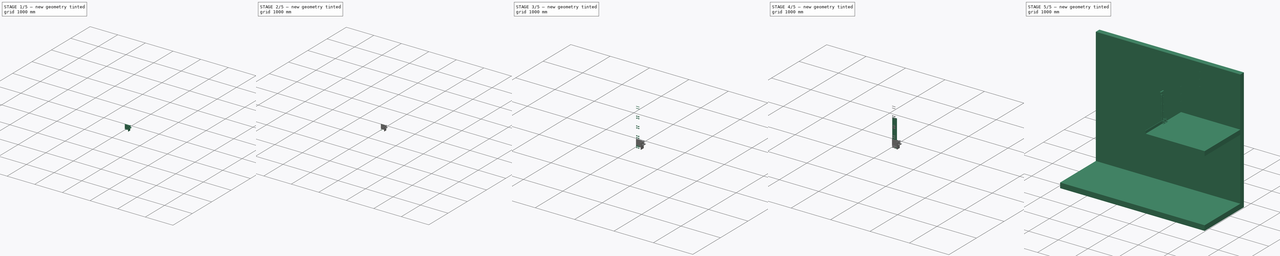
[diagram: build sequence overview — one tinted view per stage of 5, left to right]
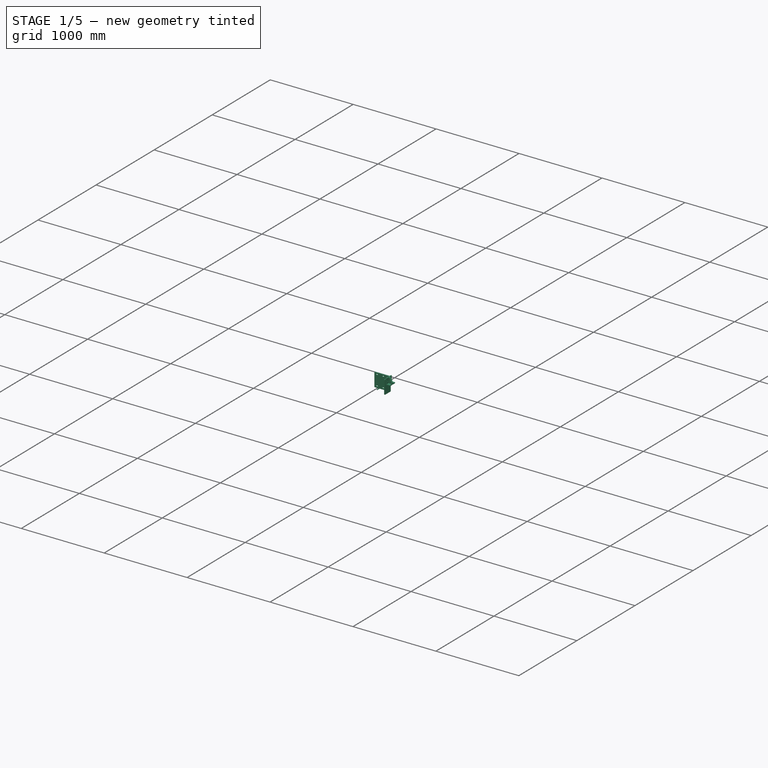
[diagram: stage 1 of 5 — iso view after this stage's code; geometry added in this stage tinted green]
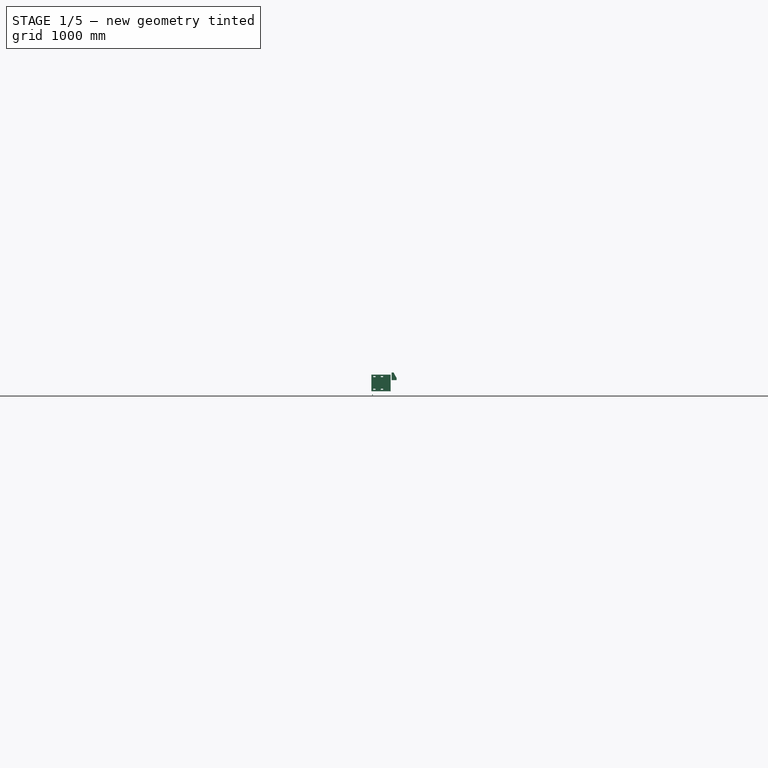
[diagram: stage 1 of 5 — front view after this stage's code; geometry added in this stage tinted green]
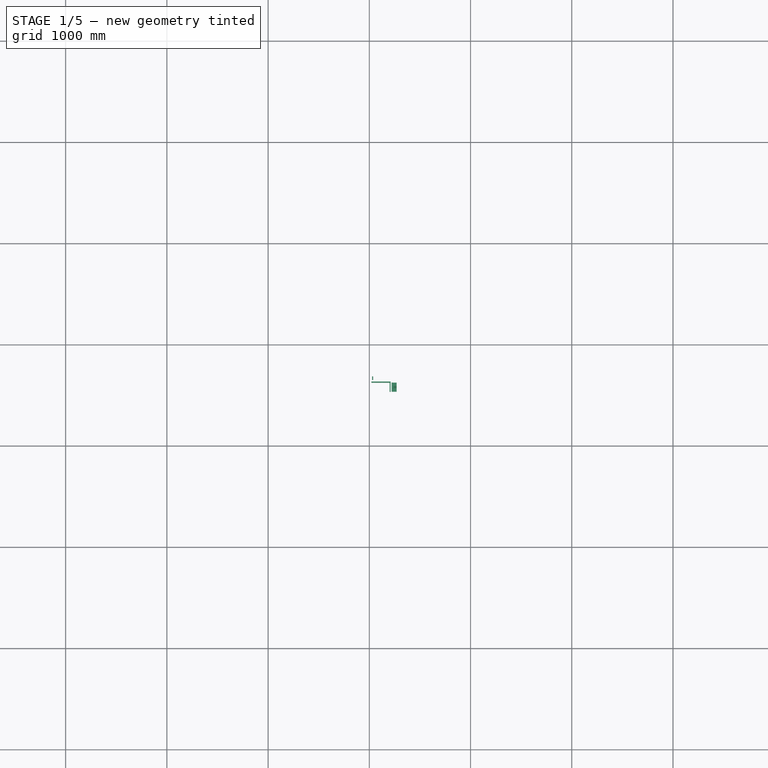
[diagram: stage 1 of 5 — top view after this stage's code; geometry added in this stage tinted green]
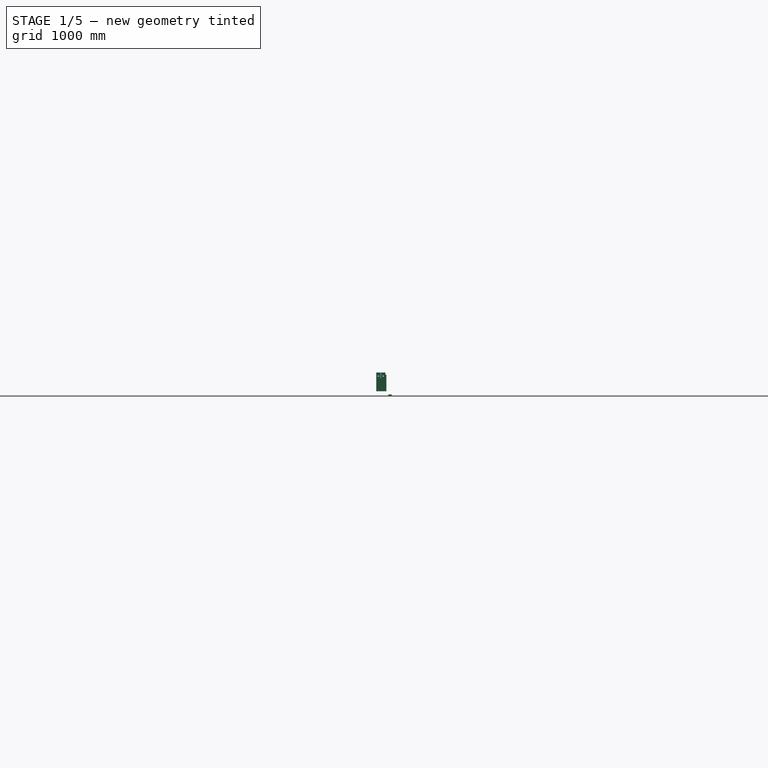
[diagram: stage 1 of 5 — right view after this stage's code; geometry added in this stage tinted green]
FCSTD DOCUMENT  (FreeCAD 0.17R11051 (Git))
Label: railing_last_steel
License: All rights reserved
LicenseURL: http://en.wikipedia.org/wiki/All_rights_reserved
objects: Part::Extrusion×14, Part::FeaturePython×14, Part::Part2DObjectPython×13, Sketcher::SketchObject×9, TechDraw::DrawProjGroupItem×9, PartDesign::Pad×6, Part::Compound×6, Part::Cut×6, PartDesign::Body×3, Part::Feature×3, PartDesign::Pocket×3, TechDraw::DrawProjGroup×3, PartDesign::ShapeBinder×2, Part::Chamfer×2, App::DocumentObjectGroup×2, TechDraw::DrawSVGTemplate×1, TechDraw::DrawViewPart×1, PartDesign::Plane×1, PartDesign::Fillet×1, TechDraw::DrawViewMulti×1, +1 more types
note: 92 computed .brp shape members not serialized (recipe doc carries the construction recipe); baked Part::Feature solids carry a one-line shape summary decoded from their .brp

FEATURE [Sketcher::SketchObject] Sketch008
  MapMode = 5
  Support = -> [XY_Plane]
  sketch-geometry (6):
    g0: LineSegment StartX=0 StartY=0 StartZ=0 EndX=0 EndY=-100 EndZ=0
    g1: LineSegment StartX=0 StartY=-100 StartZ=0 EndX=-10 EndY=-100 EndZ=0
    g2: LineSegment StartX=-10 StartY=-100 StartZ=0 EndX=-10 EndY=-10 EndZ=0
    g3: LineSegment StartX=-10 StartY=-10 StartZ=0 EndX=-190 EndY=-10 EndZ=0
    g4: LineSegment StartX=-190 StartY=-10 StartZ=0 EndX=-190 EndY=0 EndZ=0
    g5: LineSegment StartX=-190 StartY=0 StartZ=0 EndX=0 EndY=0 EndZ=0
  constraints (17):
    c: Coincident(g-1,g0)
    c: PointOnObject(g0,g-2)
    c: Coincident(g0,g1)
    c: Horizontal(g1)
    c: Coincident(g1,g2)
    c: Vertical(g2)
    c: Coincident(g2,g3)
    c: Horizontal(g3)
    c: Coincident(g3,g4)
    c: Vertical(g4)
    c: Coincident(g4,g5)
    c: Coincident(g5,g0)
    c: Horizontal(g5)
    c: DistanceY(g0,g0) = 100
    c: DistanceX(g5,g5) = 190
    c: DistanceX(g1,g1) = 10
    c: Equal(g4,g1)
FEATURE [PartDesign::Pad] Pad004
  Length = 165
  Length2 = 100
  Midplane = true
  Profile = -> Sketch008
  Type = 0
FEATURE [Part::Part2DObjectPython] Circle008  # Draft 2D object (typed FeaturePython)
  FirstAngle = 0
  LastAngle = 0
  MakeFace = true
  Placement = pos=(32.2,-311,44) rot=(-1,0,0;1.5708rad)
  Radius = 5
FEATURE [Part::Extrusion] Extrude014
  Base = -> Circle008
  Dir = (0,-1,0)
  DirMode = 0
  FaceMakerClass = Part::FaceMakerBullseye
  LengthFwd = 35
  LengthRev = 0
  Solid = false
  Symmetric = false
FEATURE [Sketcher::SketchObject] Sketch010
  ExternalGeometry = -> [Pad004]
  MapMode = 5
  Placement = pos=(0,0,0) rot=(0,0.707107,0.707107;3.14159rad)
  Support = -> [Pad004]
  sketch-geometry (19):
    g0: ArcOfCircle CenterX=77.5 CenterY=62.5 CenterZ=0 NormalX=0 NormalY=0 NormalZ=1 Radius=5 StartAngle=1.5708 EndAngle=4.71239
    g1: ArcOfCircle CenterX=92.5 CenterY=62.5 CenterZ=0 NormalX=0 NormalY=0 NormalZ=1 Radius=5 StartAngle=4.71239 EndAngle=7.85398
    g2: LineSegment StartX=77.5 StartY=57.5 StartZ=0 EndX=92.5 EndY=57.5 EndZ=0
    g3: LineSegment StartX=77.5 StartY=67.5 StartZ=0 EndX=92.5 EndY=67.5 EndZ=0
    g4: ArcOfCircle CenterX=152.5 CenterY=62.5 CenterZ=0 NormalX=0 NormalY=0 NormalZ=1 Radius=5 StartAngle=1.5708 EndAngle=4.71239
    g5: ArcOfCircle CenterX=167.5 CenterY=62.5 CenterZ=0 NormalX=0 NormalY=0 NormalZ=1 Radius=5 StartAngle=4.71239 EndAngle=7.85398
    g6: LineSegment StartX=152.5 StartY=57.5 StartZ=0 EndX=167.5 EndY=57.5 EndZ=0
    g7: LineSegment StartX=152.5 StartY=67.5 StartZ=0 EndX=167.5 EndY=67.5 EndZ=0
    g8: ArcOfCircle CenterX=152.5 CenterY=-62.5 CenterZ=0 NormalX=0 NormalY=0 NormalZ=1 Radius=5 StartAngle=1.5708 EndAngle=4.71239
    g9: ArcOfCircle CenterX=167.5 CenterY=-62.5 CenterZ=0 NormalX=0 NormalY=0 NormalZ=1 Radius=5 StartAngle=4.71239 EndAngle=7.85398
    g10: LineSegment StartX=152.5 StartY=-67.5 StartZ=0 EndX=167.5 EndY=-67.5 EndZ=0
    g11: LineSegment StartX=152.5 StartY=-57.5 StartZ=0 EndX=167.5 EndY=-57.5 EndZ=0
    g12: ArcOfCircle CenterX=77.5 CenterY=-62.5 CenterZ=0 NormalX=0 NormalY=0 NormalZ=1 Radius=5 StartAngle=1.5708 EndAngle=4.71239
    g13: ArcOfCircle CenterX=92.5 CenterY=-62.5 CenterZ=0 NormalX=0 NormalY=0 NormalZ=1 Radius=5 StartAngle=4.71239 EndAngle=7.85398
    g14: LineSegment StartX=77.5 StartY=-67.5 StartZ=0 EndX=92.5 EndY=-67.5 EndZ=0
    g15: LineSegment StartX=77.5 StartY=-57.5 StartZ=0 EndX=92.5 EndY=-57.5 EndZ=0
    g16: LineSegment [constr] StartX=160 StartY=82.5 StartZ=0 EndX=160 EndY=-82.5 EndZ=0
    g17: LineSegment [constr] StartX=85 StartY=82.5 StartZ=0 EndX=85 EndY=-82.5 EndZ=0
    g18: LineSegment [constr] StartX=190 StartY=62.5 StartZ=0 EndX=0 EndY=62.5 EndZ=0
  constraints (50):
    c: Tangent(g0,g3) = 1.5708
    c: Tangent(g0,g2) = -1.5708
    c: Tangent(g2,g1) = -1.5708
    c: Tangent(g3,g1) = 1.5708
    c: Horizontal(g2)
    c: Equal(g0,g1)
    c: Tangent(g4,g7) = 1.5708
    c: Tangent(g4,g6) = -1.5708
    c: Tangent(g6,g5) = -1.5708
    c: Tangent(g7,g5) = 1.5708
    c: Horizontal(g6)
    c: Equal(g4,g5)
    c: Tangent(g8,g11) = 1.5708
    c: Tangent(g8,g10) = -1.5708
    c: Tangent(g10,g9) = -1.5708
    c: Tangent(g11,g9) = 1.5708
    c: Horizontal(g10)
    c: Equal(g8,g9)
    c: Tangent(g12,g15) = 1.5708
    c: Tangent(g12,g14) = -1.5708
    c: Tangent(g14,g13) = -1.5708
    c: Tangent(g15,g13) = 1.5708
    c: Horizontal(g14)
    c: Equal(g12,g13)
    c: Radius(g5) = 5
    c: DistanceX(g7,g7) = 15
    c: Equal(g7,g3)
    c: Equal(g3,g15)
    c: Equal(g15,g11)
    c: Equal(g4,g0)
    c: Equal(g0,g12)
    c: Equal(g12,g8)
    c: PointOnObject(g16,g-3)
    c: PointOnObject(g16,g-5)
    c: Vertical(g16)
    c: PointOnObject(g17,g-3)
    c: PointOnObject(g17,g-5)
    c: Vertical(g17)
    c: DistanceX(g17,g16) = 75
    c: DistanceX(g16,g-4) = 30
    c: Symmetric(g4,g5,g16)
    c: Symmetric(g0,g1,g17)
    c: PointOnObject(g18,g-4)
    c: PointOnObject(g18,g-6)
    c: Horizontal(g18)
    c: PointOnObject(g5,g18)
    c: PointOnObject(g1,g18)
    c: DistanceY(g18,g-4) = 20
    c: Symmetric(g0,g12,g-1)
    c: Symmetric(g8,g4,g-1)
FEATURE [PartDesign::Pocket] Pocket
  BaseFeature = -> Pad004
  Length = 5
  Profile = -> Sketch010
  Type = 1
FEATURE [Sketcher::SketchObject] Sketch011
  ExternalGeometry = -> [Pocket]
  MapMode = 5
  Placement = pos=(-10,0,0) rot=(0.57735,-0.57735,-0.57735;2.0944rad)
  Support = -> [Pocket]
  sketch-geometry (5):
    g0: LineSegment [constr] StartX=10 StartY=0 StartZ=0 EndX=55 EndY=0 EndZ=0
    g1: LineSegment [constr] StartX=55 StartY=0 StartZ=0 EndX=100 EndY=0 EndZ=0
    g2: LineSegment [constr] StartX=55 StartY=0 StartZ=0 EndX=55 EndY=82.5 EndZ=0
    g3: Circle CenterX=80 CenterY=67.5 CenterZ=0 NormalX=0 NormalY=0 NormalZ=1 Radius=5
    g4: Circle CenterX=30 CenterY=67.5 CenterZ=0 NormalX=0 NormalY=0 NormalZ=1 Radius=5
  constraints (15):
    c: PointOnObject(g0,g-4)
    c: PointOnObject(g0,g-1)
    c: Horizontal(g0)
    c: Coincident(g1,g0)
    c: PointOnObject(g1,g-5)
    c: Horizontal(g1)
    c: Equal(g1,g0)
    c: Coincident(g2,g0)
    c: Vertical(g2)
    c: PointOnObject(g2,g-3)
    c: DistanceX(g3,g-5) = 20
    c: DistanceY(g3,g-5) = 15
    c: Radius(g3) = 5
    c: Symmetric(g4,g3,g2)
    c: Equal(g4,g3)
FEATURE [PartDesign::Pocket] Pocket001
  BaseFeature = -> Pocket
  Length = 5
  Profile = -> Sketch011
  Type = 1
FEATURE [App::DocumentObjectGroup] Group002  label="ref"
  Group = -> [railing_eyelet_002,room_01,loft_railing_element_01]
FEATURE [Sketcher::SketchObject] Sketch012
  Placement = pos=(0,-526,0) rot=(-1,0,0;1.5708rad)
  sketch-geometry (8):
    g0: LineSegment [constr] StartX=2100 StartY=-2315 StartZ=0 EndX=2100 EndY=-2150 EndZ=0
    g1: LineSegment [constr] StartX=2100 StartY=-2295 StartZ=0 EndX=2120 EndY=-2295 EndZ=0
    g2: LineSegment StartX=2110 StartY=-2335 StartZ=0 EndX=2110 EndY=-2260 EndZ=0
    g3: LineSegment StartX=2110 StartY=-2260 StartZ=0 EndX=2160 EndY=-2260 EndZ=0
    g4: LineSegment StartX=2160 StartY=-2260 StartZ=0 EndX=2160 EndY=-2270 EndZ=0
    g5: LineSegment StartX=2160 StartY=-2270 StartZ=0 EndX=2120 EndY=-2270 EndZ=0
    g6: LineSegment StartX=2120 StartY=-2270 StartZ=0 EndX=2120 EndY=-2335 EndZ=0
    g7: LineSegment StartX=2120 StartY=-2335 StartZ=0 EndX=2110 EndY=-2335 EndZ=0
  constraints (27):
    c: Vertical(g0)
    c: Horizontal(g1)
    c: Coincident(g2,g3)
    c: Coincident(g3,g4)
    c: Coincident(g4,g5)
    c: Coincident(g5,g6)
    c: Coincident(g6,g7)
    c: Coincident(g7,g2)
    c: Horizontal(g7)
    c: Horizontal(g5)
    c: Horizontal(g3)
    c: Vertical(g2)
    c: Vertical(g6)
    c: Vertical(g4)
    c: Equal(g7,g4)
    c: DistanceX(g7,g7) = 10
    c: DistanceY(g0,g2) = 55
    c: DistanceX(g0) = 2100
    c: DistanceY(g0) = -2150
    c: DistanceY(g0,g0) = 165
    c: DistanceX(g0,g2) = 10
    c: DistanceX(g3,g3) = 50
    c: DistanceY(g6,g1) = 40
    c: PointOnObject(g1,g6)
    c: PointOnObject(g1,g0)
    c: DistanceY(g0,g1) = 20
    c: DistanceY(g2,g2) = 75
FEATURE [PartDesign::Pad] Pad005
  Length = 90
  Length2 = 100
  Midplane = true
  Placement = pos=(0,-526,0) rot=(-1,0,0;1.5708rad)
  Profile = -> Sketch012
  Type = 0
FEATURE [Sketcher::SketchObject] Sketch013
  ExternalGeometry = -> [Pad005]
  MapMode = 5
  Placement = pos=(2120,-526,0) rot=(0,1,0;1.5708rad)
  Support = -> [Pad005]
  sketch-geometry (9):
    g0: ArcOfCircle CenterX=-2310 CenterY=-25 CenterZ=0 NormalX=0 NormalY=0 NormalZ=1 Radius=5 StartAngle=1.5708 EndAngle=4.71239
    g1: ArcOfCircle CenterX=-2295 CenterY=-25 CenterZ=0 NormalX=0 NormalY=0 NormalZ=1 Radius=5 StartAngle=4.71239 EndAngle=7.85398
    g2: LineSegment StartX=-2310 StartY=-30 StartZ=0 EndX=-2295 EndY=-30 EndZ=0
    g3: LineSegment StartX=-2310 StartY=-20 StartZ=0 EndX=-2295 EndY=-20 EndZ=0
    g4: ArcOfCircle CenterX=-2310 CenterY=25 CenterZ=0 NormalX=0 NormalY=0 NormalZ=1 Radius=5 StartAngle=1.5708 EndAngle=4.71239
    g5: ArcOfCircle CenterX=-2295 CenterY=25 CenterZ=0 NormalX=0 NormalY=0 NormalZ=1 Radius=5 StartAngle=4.71239 EndAngle=7.85398
    g6: LineSegment StartX=-2310 StartY=20 StartZ=0 EndX=-2295 EndY=20 EndZ=0
    g7: LineSegment StartX=-2310 StartY=30 StartZ=0 EndX=-2295 EndY=30 EndZ=0
    g8: LineSegment [constr] StartX=-2295 StartY=-45 StartZ=0 EndX=-2295 EndY=45 EndZ=0
  constraints (26):
    c: Tangent(g0,g3) = 1.5708
    c: Tangent(g0,g2) = -1.5708
    c: Tangent(g2,g1) = -1.5708
    c: Tangent(g3,g1) = 1.5708
    c: Horizontal(g2)
    c: Equal(g0,g1)
    c: DistanceY(g0,g-6) = -20
    c: Radius(g0) = 5
    c: Tangent(g4,g7) = 1.5708
    c: Tangent(g4,g6) = -1.5708
    c: Tangent(g6,g5) = -1.5708
    c: Tangent(g7,g5) = 1.5708
    c: Horizontal(g6)
    c: Equal(g4,g5)
    c: Equal(g4,g0)
    c: Equal(g6,g3)
    c: Symmetric(g4,g0,g-1)
    c: PointOnObject(g8,g-6)
    c: PointOnObject(g8,g-3)
    c: Vertical(g8)
    c: DistanceX(g-6,g8) = 40
    c: PointOnObject(g1,g8)
    c: DistanceX(g2,g2) = 15
    c: DistanceX(g-6,g0) = 25
    c: DistanceX(g1,g-6) = 25
    c: DistanceY(g0,g4) = 50
FEATURE [PartDesign::Pocket] Pocket002
  BaseFeature = -> Pad005
  Length = 5
  Placement = pos=(0,-526,0) rot=(-1,0,0;1.5708rad)
  Profile = -> Sketch013
  Type = 1
FEATURE [PartDesign::ShapeBinder] CopyDWire001
FEATURE [PartDesign::Plane] DatumPlane
  MapMode = 5
  Placement = pos=(3.1e-11,-526,0) rot=(0,0.707107,0.707107;3.14159rad)
  Support = -> [CopyDWire001]
FEATURE [Sketcher::SketchObject] Sketch003
  ExternalGeometry = -> [Pocket002]
  MapMode = 5
  Placement = pos=(3.1e-11,-526,0) rot=(0,0.707107,0.707107;3.14159rad)
  Support = -> [DatumPlane]
  sketch-geometry (5):
    g0: LineSegment StartX=-2160 StartY=2270 StartZ=0 EndX=-2160 EndY=2280 EndZ=0
    g1: LineSegment StartX=-2160 StartY=2280 StartZ=0 EndX=-2130 EndY=2335 EndZ=0
    g2: LineSegment StartX=-2130 StartY=2335 StartZ=0 EndX=-2120 EndY=2335 EndZ=0
    g3: LineSegment StartX=-2120 StartY=2335 StartZ=0 EndX=-2120 EndY=2270 EndZ=0
    g4: LineSegment StartX=-2120 StartY=2270 StartZ=0 EndX=-2160 EndY=2270 EndZ=0
  constraints (12):
    c: Coincident(g-4,g0)
    c: Vertical(g0)
    c: Coincident(g0,g1)
    c: Coincident(g1,g2)
    c: Coincident(g2,g-3)
    c: Coincident(g2,g3)
    c: Coincident(g3,g-4)
    c: Coincident(g3,g4)
    c: Coincident(g4,g0)
    c: Horizontal(g2)
    c: Equal(g2,g0)
    c: DistanceX(g2,g2) = 10
FEATURE [PartDesign::Pad] Pad006
  BaseFeature = -> Pocket002
  Length = 20
  Length2 = 100
  Midplane = true
  Placement = pos=(0,-526,0) rot=(-1,0,0;1.5708rad)
  Profile = -> Sketch003
  Type = 0
FEATURE [PartDesign::Body] Body002
  Group = -> [Sketch012,Pad005,Sketch013,Pocket002,DatumPlane,CopyDWire001,Sketch003,Pad006]
  Origin = -> Body001Origin001
  Tip = -> Pad006
FEATURE [PartDesign::Fillet] Fillet
  Base = -> Pocket001 [Edge33,Edge29,Edge26,Edge30]
  BaseFeature = -> Pocket001
  Radius = 5
FEATURE [PartDesign::Body] Body
  Group = -> [Sketch008,Pad004,Sketch010,Pocket,Sketch011,Pocket001,Fillet]
  Origin = -> BodyOrigin
  Placement = pos=(210,-365,162.5) rot=(0,0,1;0rad)
FEATURE [App::DocumentObjectGroup] Group  label="utilities"
  Group = -> [Body001,Body,Body002]
FEATURE [Part::FeaturePython] Component004  label="Fillet001"  # WARN: FeaturePython — macro-defined, semantics opaque (R4)
  CloneOf = -> Fillet
  HorizontalArea = 0
  MoveWithHost = false
  PerimeterLength = 0
  Placement = pos=(210,-365,162.5) rot=(0,0,1;0rad)
  Role = 0
  VerticalArea = 0
FEATURE [TechDraw::DrawProjGroupItem] ProjItem004  label="Front001"
  ArcCenterMarks = true
  CenterScale = 2
  Direction = (0,-1,0)
  HardHidden = false
  HiddenWidth = 0.15
  HorizCenterLine = false
  IsoCount = 0
  IsoHidden = false
  IsoVisible = false
  IsoWidth = 0.3
  KeepLabel = false
  LineWidth = 0.7
  Rotation = 0
  RotationVector = (1,0,0)
  Scale = 0.5
  ScaleType = 2
  SeamHidden = false
  SeamVisible = false
  ShowSectionLine = true
  SmoothHidden = false
  SmoothVisible = false
  Type = 0
  VertCenterLine = false
  X = -1e-12
  Y = 56.25
FEATURE [TechDraw::DrawProjGroupItem] ProjItem005  label="Top001"
  ArcCenterMarks = true
  CenterScale = 2
  Direction = (0,0,1)
  HardHidden = true
  HiddenWidth = 0.15
  HorizCenterLine = false
  IsoCount = 0
  IsoHidden = false
  IsoVisible = false
  IsoWidth = 0.3
  KeepLabel = false
  LineWidth = 0.7
  Rotation = 0
  RotationVector = (1,0,0)
  Scale = 0.5
  ScaleType = 2
  SeamHidden = false
  SeamVisible = false
  ShowSectionLine = true
  SmoothHidden = false
  SmoothVisible = false
  Type = 4
  VertCenterLine = false
  X = 21.7068
  Y = -60
FEATURE [TechDraw::DrawProjGroup] ProjGroup001
  Anchor = -> ProjItem004
  AutoDistribute = true
  KeepLabel = false
  ProjectionType = 0
  Rotation = 0
  Scale = 0.5
  ScaleType = 2
  Views = -> [ProjItem004,ProjItem005]
  X = 132.485
  Y = 471.911
  spacingX = 25
  spacingY = 15
FEATURE [TechDraw::DrawProjGroupItem] ProjItem006  label="Front002"
  ArcCenterMarks = true
  CenterScale = 2
  Direction = (0,-1,0)
  HardHidden = true
  HiddenWidth = 0.15
  HorizCenterLine = false
  IsoCount = 0
  IsoHidden = false
  IsoVisible = false
  IsoWidth = 0.3
  KeepLabel = false
  LineWidth = 0.7
  Rotation = 0
  RotationVector = (1,0,0)
  Scale = 0.2
  ScaleType = 2
  SeamHidden = false
  SeamVisible = false
  ShowSectionLine = true
  SmoothHidden = false
  SmoothVisible = false
  Source = -> Component004
  Type = 0
  VertCenterLine = false
  X = -80
  Y = 0
FEATURE [TechDraw::DrawProjGroupItem] ProjItem007  label="Top002"
  ArcCenterMarks = true
  CenterScale = 2
  Direction = (0,0,1)
  HardHidden = true
  HiddenWidth = 0.15
  HorizCenterLine = false
  IsoCount = 0
  IsoHidden = false
  IsoVisible = false
  IsoWidth = 0.3
  KeepLabel = false
  LineWidth = 0.7
  Rotation = 0
  RotationVector = (1,0,0)
  Scale = 0.2
  ScaleType = 2
  SeamHidden = false
  SeamVisible = false
  ShowSectionLine = true
  SmoothHidden = false
  SmoothVisible = false
  Source = -> Component004
  Type = 4
  VertCenterLine = false
  X = 0
  Y = -48
FEATURE [TechDraw::DrawProjGroupItem] ProjItem008  label="Left001"
  ArcCenterMarks = true
  CenterScale = 2
  Direction = (-1,0,0)
  HardHidden = true
  HiddenWidth = 0.15
  HorizCenterLine = false
  IsoCount = 0
  IsoHidden = false
  IsoVisible = false
  IsoWidth = 0.3
  KeepLabel = false
  LineWidth = 0.7
  Rotation = 0
  RotationVector = (0,1,0)
  Scale = 0.2
  ScaleType = 2
  SeamHidden = false
  SeamVisible = false
  ShowSectionLine = true
  SmoothHidden = false
  SmoothVisible = false
  Source = -> Component004
  Type = 1
  VertCenterLine = false
  X = 53
  Y = 0
FEATURE [TechDraw::DrawProjGroup] ProjGroup002
  Anchor = -> ProjItem006
  AutoDistribute = true
  KeepLabel = false
  ProjectionType = 0
  Rotation = 0
  Scale = 0.2
  ScaleType = 2
  Source = -> Component004
  Views = -> [ProjItem006,ProjItem007,ProjItem008]
  X = 131.114
  Y = 327.275
  spacingX = 15
  spacingY = 15
FEATURE [Part::FeaturePython] Component005  label="Pad007"  # WARN: FeaturePython — macro-defined, semantics opaque (R4)
  CloneOf = -> Pad006
  HorizontalArea = 0
  MoveWithHost = false
  PerimeterLength = 0
  Placement = pos=(-1890,-420,-2070) rot=(-1,0,0;1.5708rad)
  Role = 0
  VerticalArea = 0
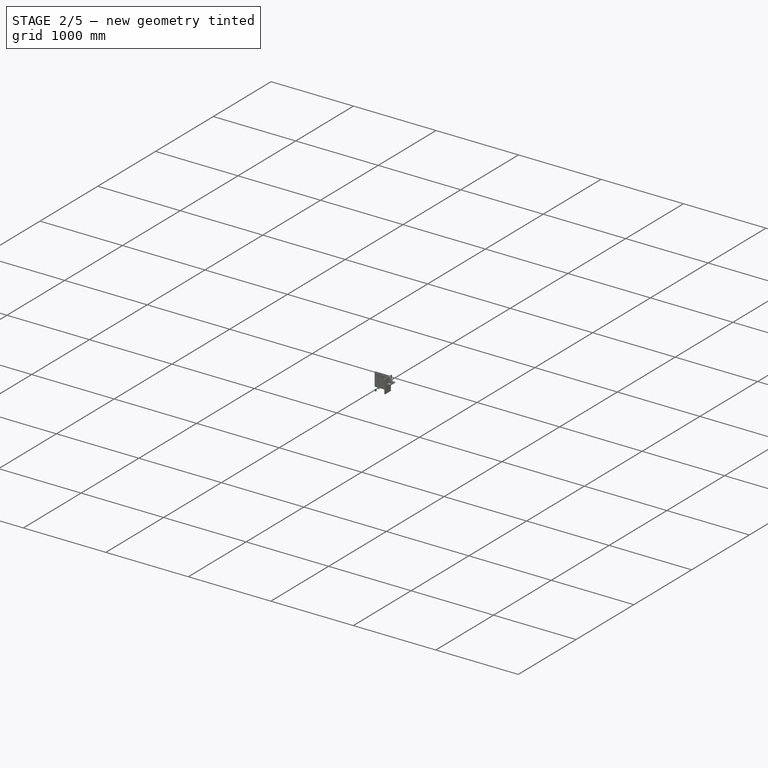
[diagram: stage 2 of 5 — iso view after this stage's code; geometry added in this stage tinted green]
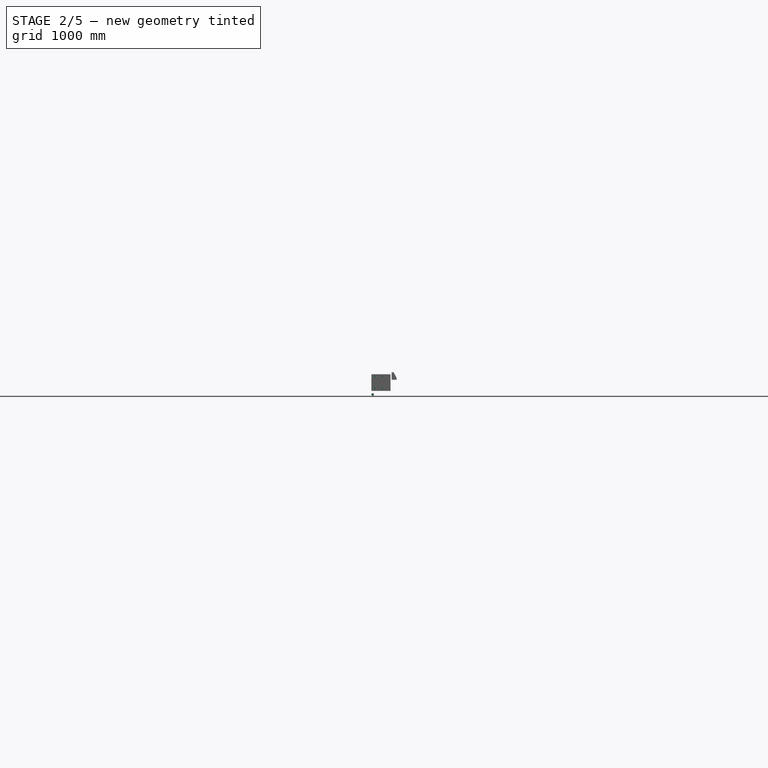
[diagram: stage 2 of 5 — front view after this stage's code; geometry added in this stage tinted green]
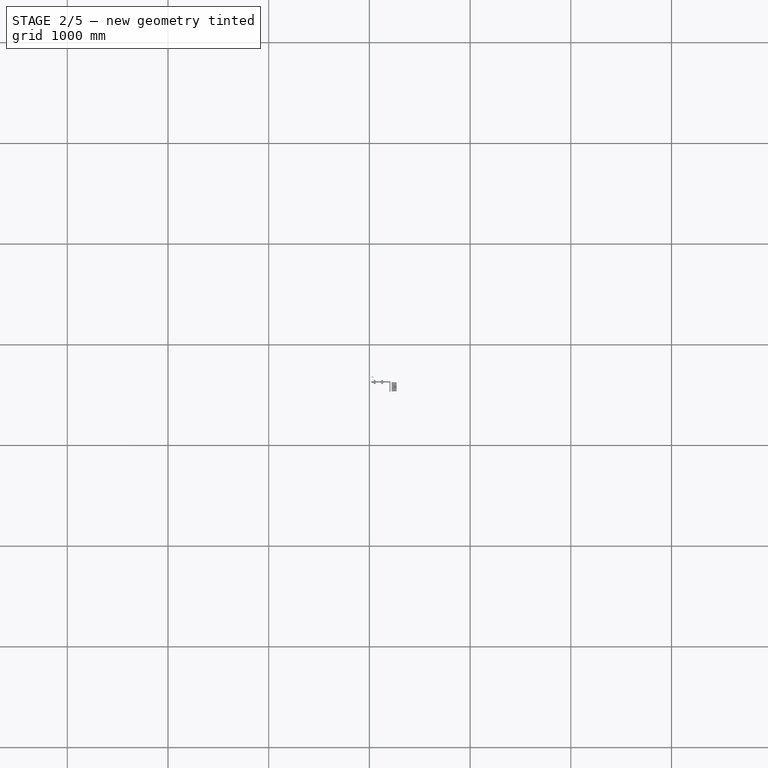
[diagram: stage 2 of 5 — top view after this stage's code; geometry added in this stage tinted green]
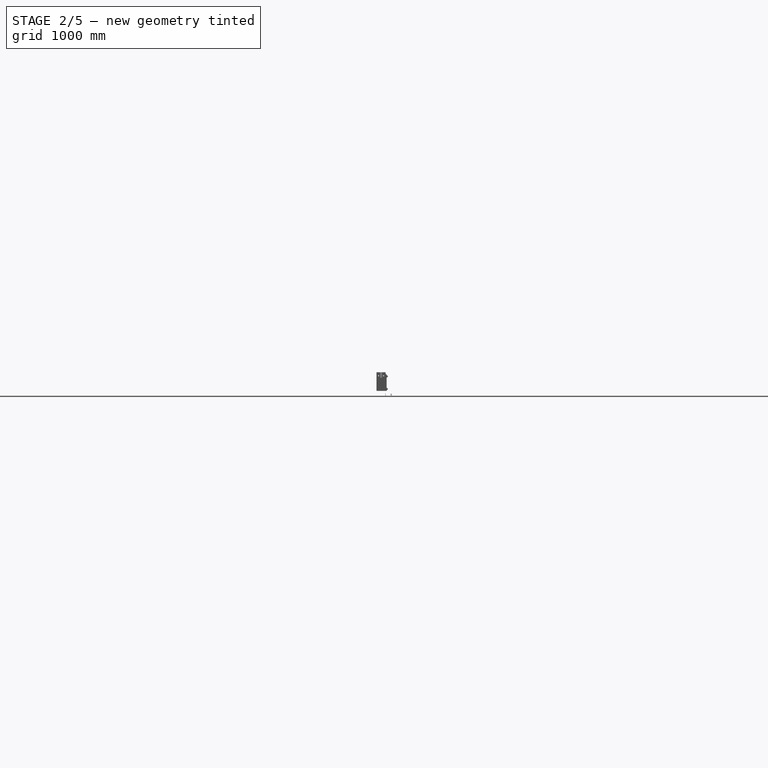
[diagram: stage 2 of 5 — right view after this stage's code; geometry added in this stage tinted green]
FEATURE [Part::Part2DObjectPython] Circle004  # Draft 2D object (typed FeaturePython)
  FirstAngle = 0
  LastAngle = 0
  MakeFace = true
  Placement = pos=(32.2,-375,44) rot=(1,0,0;1.5708rad)
  Radius = 12.5
FEATURE [Part::Extrusion] Extrude010
  Base = -> Circle004
  Dir = (0,-1,0)
  DirMode = 0
  FaceMakerClass = Part::FaceMakerBullseye
  LengthFwd = 2
  LengthRev = 0
  Solid = false
  Symmetric = false
FEATURE [Part::Part2DObjectPython] Circle005  # Draft 2D object (typed FeaturePython)
  FirstAngle = 0
  LastAngle = 0
  MakeFace = true
  Placement = pos=(32.2,-375,44) rot=(1,0,0;1.5708rad)
  Radius = 5
FEATURE [Part::Extrusion] Extrude011
  Base = -> Circle005
  Dir = (0,-1,0)
  DirMode = 0
  FaceMakerClass = Part::FaceMakerBullseye
  LengthFwd = 2
  LengthRev = 0
  Solid = false
  Symmetric = false
FEATURE [Part::FeaturePython] Component003  label="nuts001"  # WARN: FeaturePython — macro-defined, semantics opaque (R4)
  HorizontalArea = 0
  MoveWithHost = false
  PerimeterLength = 0
  Placement = pos=(32.2,-317,44) rot=(1,0,0;1.5708rad)
  Role = 0
  VerticalArea = 0
FEATURE [Part::Part2DObjectPython] Circle006  # Draft 2D object (typed FeaturePython)
  FirstAngle = 0
  LastAngle = 0
  MakeFace = true
  Placement = pos=(32.2,-375,44) rot=(1,0,0;1.5708rad)
  Radius = 12.5
FEATURE [Part::Extrusion] Extrude012
  Base = -> Circle006
  Dir = (0,-1,0)
  DirMode = 0
  FaceMakerClass = Part::FaceMakerBullseye
  LengthFwd = 2
  LengthRev = 0
  Solid = false
  Symmetric = false
FEATURE [Part::Part2DObjectPython] Circle007  # Draft 2D object (typed FeaturePython)
  FirstAngle = 0
  LastAngle = 0
  MakeFace = true
  Placement = pos=(32.2,-375,44) rot=(1,0,0;1.5708rad)
  Radius = 5
FEATURE [Part::Extrusion] Extrude013
  Base = -> Circle007
  Dir = (0,-1,0)
  DirMode = 0
  FaceMakerClass = Part::FaceMakerBullseye
  LengthFwd = 2
  LengthRev = 0
  Solid = false
  Symmetric = false
FEATURE [Part::Cut] Cut005  label="washer004"
  Base = -> Extrude012
  Tool = -> Extrude013
FEATURE [Part::Feature] BOLTS_part011_cs
  Placement = pos=(0,0,-2.5) rot=(0,0,1;0rad)
  shape: bbox 17 x 19.63 x 3e-07 mm, 0 faces, 0 solids (baked)
FEATURE [Part::Extrusion] Extrude004  label="nuts"
  Base = -> BOLTS_part011_cs
  Dir = (0,0,1)
  DirMode = 0
  FaceMakerClass = Part::FaceMakerBullseye
  LengthFwd = 6
  LengthRev = 0
  Placement = pos=(32.2,-351,44) rot=(1,0,0;1.5708rad)
  Solid = true
  Symmetric = false
FEATURE [Part::FeaturePython] Component  label="washer001"  # WARN: FeaturePython — macro-defined, semantics opaque (R4)
  CloneOf = -> Cut005
  HorizontalArea = 0
  MoveWithHost = false
  PerimeterLength = 0
  Placement = pos=(0,18,0) rot=(0,0,1;0rad)
  Role = 0
  VerticalArea = 0
FEATURE [Part::Feature] BOLTS_part001001  label="Hexagon head bolt DIN 931 M10 - 66.002"
  Placement = pos=(32.2,-383.4,44) rot=(-1,0,0;1.5708rad)
  shape: bbox 17 x 72.4 x 19.63 mm, 11 faces (baked)
FEATURE [Part::Cut] Cut006
  Base = -> BOLTS_part001001
  Tool = -> Extrude014
FEATURE [Part::Compound] Compound005  label="fastener_and_nuts003"
  Links = -> [Cut005,Extrude004,Component,Cut006]
  Placement = pos=(1909.7,-6,2126) rot=(0,0,1;0rad)
FEATURE [Part::FeaturePython] Array008  # Draft array (typed FeaturePython)
  Angle = 360
  ArrayType = 0
  Axis = (0,0,1)
  Base = -> Compound005
  Center = (0,0,0)
  Fuse = false
  IntervalAxis = (0,0,0)
  IntervalX = (75,0,0)
  IntervalY = (0,0,125)
  IntervalZ = (0,0,0)
  NumberPolar = 1
  NumberX = 2
  NumberY = 2
  NumberZ = 1
  Placement = pos=(-1890,0,-2070) rot=(0,0,1;0rad)
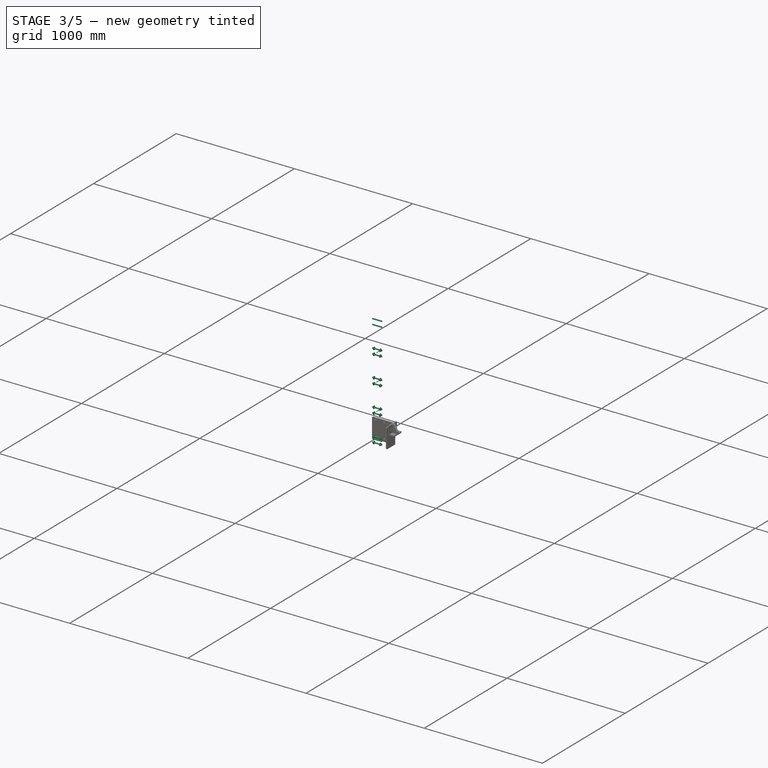
[diagram: stage 3 of 5 — iso view after this stage's code; geometry added in this stage tinted green]
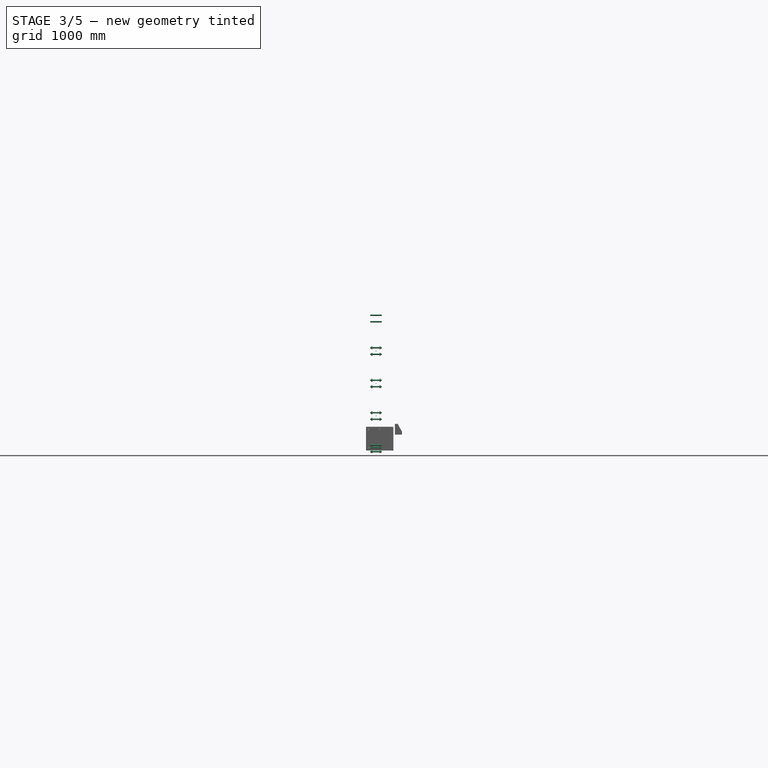
[diagram: stage 3 of 5 — front view after this stage's code; geometry added in this stage tinted green]
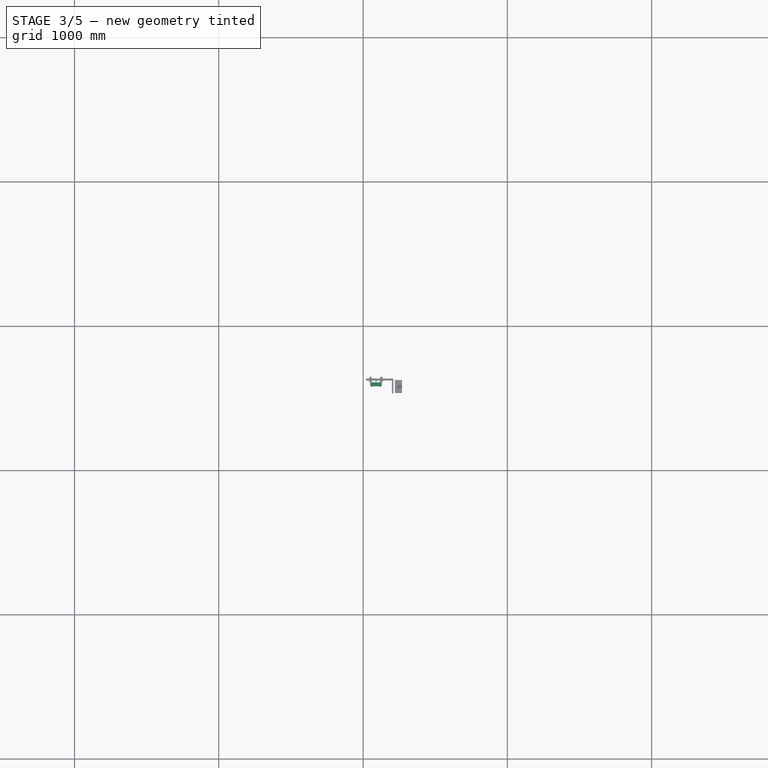
[diagram: stage 3 of 5 — top view after this stage's code; geometry added in this stage tinted green]
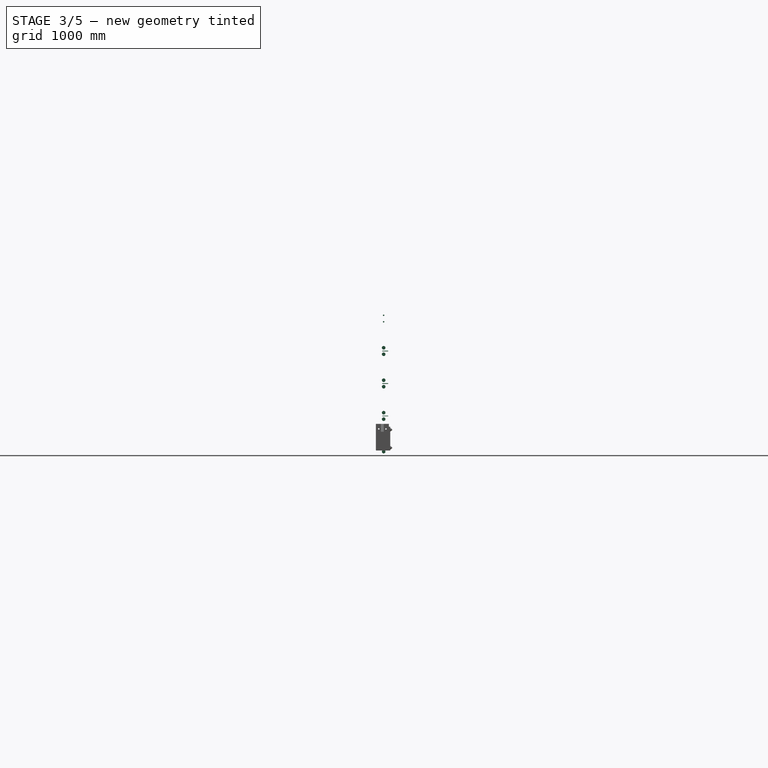
[diagram: stage 3 of 5 — right view after this stage's code; geometry added in this stage tinted green]
FEATURE [Part::Part2DObjectPython] Circle002  # Draft 2D object (typed FeaturePython)
  FirstAngle = 0
  LastAngle = 0
  MakeFace = true
  Placement = pos=(64.3902,-411,100) rot=(0.57735,-0.57735,-0.57735;2.0944rad)
  Radius = 5
FEATURE [Part::Extrusion] Extrude006
  Base = -> Circle002
  Dir = (1,0,0)
  DirMode = 0
  FaceMakerClass = Part::FaceMakerBullseye
  LengthFwd = 80
  LengthRev = 0
  Placement = pos=(25,0,0) rot=(0,0,1;0rad)
  Solid = false
  Symmetric = true
FEATURE [Part::FeaturePython] Array003  # Draft array (typed FeaturePython)
  Angle = 360
  ArrayType = 0
  Axis = (0,0,1)
  Base = -> Extrude006
  Center = (0,0,0)
  Fuse = false
  IntervalAxis = (0,0,0)
  IntervalX = (0,0,45)
  IntervalY = (0,0,225)
  IntervalZ = (0,0,0)
  NumberPolar = 1
  NumberX = 2
  NumberY = 5
  NumberZ = 1
  Placement = pos=(0,0,-27.5) rot=(0,0,1;0rad)
FEATURE [Part::Part2DObjectPython] Circle003  # Draft 2D object (typed FeaturePython)
  FirstAngle = 0
  LastAngle = 0
  MakeFace = true
  Placement = pos=(64.3902,-411,100) rot=(0.57735,-0.57735,-0.57735;2.0944rad)
  Radius = 5
FEATURE [Part::Extrusion] Extrude007
  Base = -> Circle003
  Dir = (1,0,0)
  DirMode = 0
  FaceMakerClass = Part::FaceMakerBullseye
  LengthFwd = 80
  LengthRev = 0
  Placement = pos=(25,0,0) rot=(0,0,1;0rad)
  Solid = false
  Symmetric = true
FEATURE [Part::Part2DObjectPython] Circle001  # Draft 2D object (typed FeaturePython)
  FirstAngle = 0
  LastAngle = 0
  MakeFace = true
  Placement = pos=(89.3902,-420.3,545) rot=(1,0,0;1.5708rad)
  Radius = 2.5
FEATURE [Part::Extrusion] Extrude009
  Base = -> Circle001
  Dir = (0,1,0)
  DirMode = 0
  FaceMakerClass = Part::FaceMakerBullseye
  LengthFwd = 40
  LengthRev = 0
  Solid = false
  Symmetric = false
FEATURE [Part::FeaturePython] Array006  # Draft array (typed FeaturePython)
  Angle = 360
  ArrayType = 0
  Axis = (0,0,1)
  Base = -> Extrude009
  Center = (0,0,0)
  Fuse = false
  IntervalAxis = (0,0,0)
  IntervalX = (0,0,225)
  IntervalY = (0,0,0)
  IntervalZ = (0,0,0)
  NumberPolar = 1
  NumberX = 3
  NumberY = 0
  NumberZ = 1
  Placement = pos=(0,0,-225) rot=(0,0,1;0rad)
FEATURE [Part::Compound] Compound002
  Links = -> [Array003,Array006]
FEATURE [Part::Cut] Cut004  label="washer"
  Base = -> Extrude010
  Tool = -> Extrude011
FEATURE [Part::FeaturePython] Component002  label="washer003"  # WARN: FeaturePython — macro-defined, semantics opaque (R4)
  CloneOf = -> Cut004
  HorizontalArea = 0
  MoveWithHost = false
  PerimeterLength = 0
  Placement = pos=(0,52,0) rot=(0,0,1;0rad)
  Role = 0
  VerticalArea = 0
FEATURE [Part::Feature] BOLTS_part  label="Hexagon head bolt DIN 931 M10 - 66.0"
  Placement = pos=(32.2,-383.4,44) rot=(-1,0,0;1.5708rad)
  shape: bbox 17 x 72.4 x 19.63 mm, 11 faces (baked)
FEATURE [Part::Compound] Compound004  label="fastener_and_nuts"
  Links = -> [Cut004,Component003,Component002,BOLTS_part]
  Placement = pos=(439.39,-378.8,28.5) rot=(0,0,-1;1.5708rad)
FEATURE [Part::FeaturePython] Array007  label="railing_fastener"  # Draft array (typed FeaturePython)
  Angle = 360
  ArrayType = 0
  Axis = (0,0,1)
  Base = -> Compound004
  Center = (0,0,0)
  Fuse = false
  IntervalAxis = (0,0,0)
  IntervalX = (0,0,45)
  IntervalY = (0,0,225)
  IntervalZ = (630,0,615)
  NumberPolar = 1
  NumberX = 2
  NumberY = 4
  NumberZ = 0
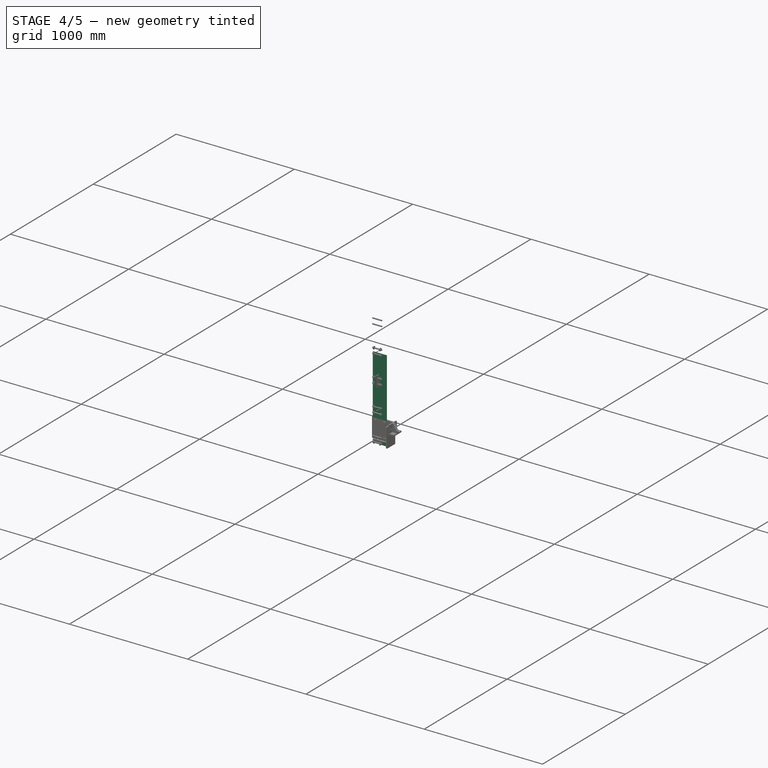
[diagram: stage 4 of 5 — iso view after this stage's code; geometry added in this stage tinted green]
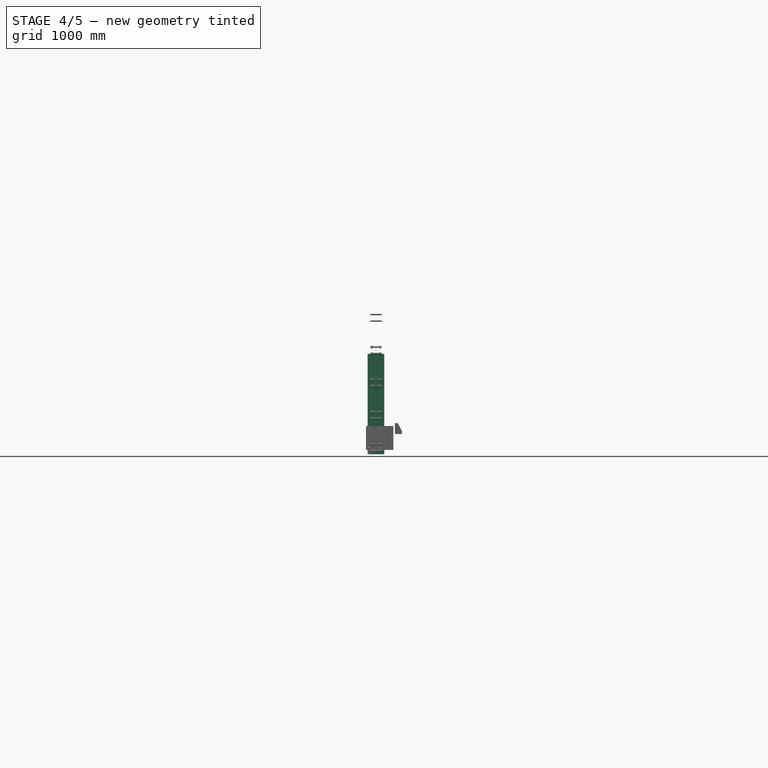
[diagram: stage 4 of 5 — front view after this stage's code; geometry added in this stage tinted green]
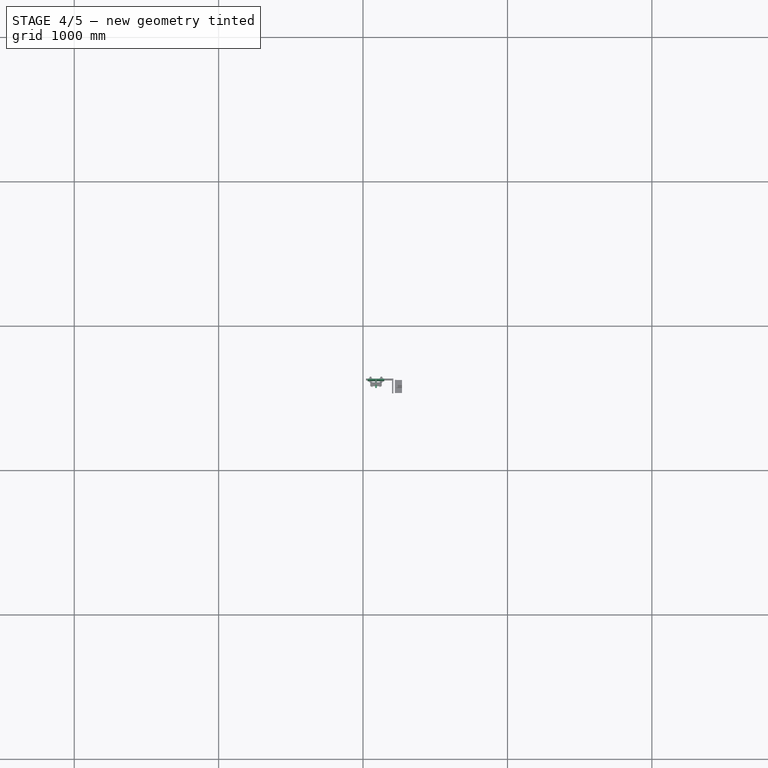
[diagram: stage 4 of 5 — top view after this stage's code; geometry added in this stage tinted green]
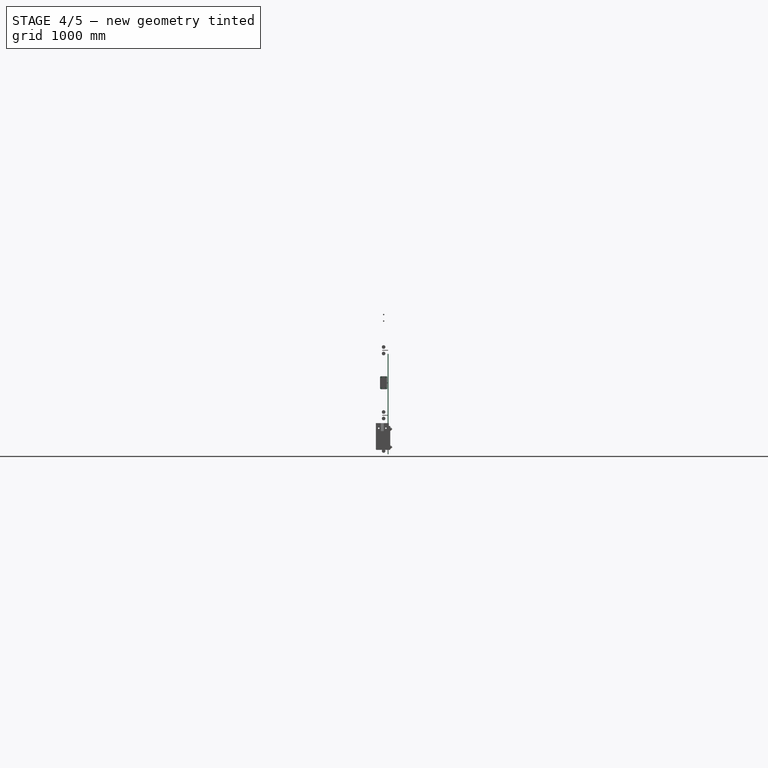
[diagram: stage 4 of 5 — right view after this stage's code; geometry added in this stage tinted green]
FEATURE [PartDesign::ShapeBinder] Copydouble_beam_01
FEATURE [Sketcher::SketchObject] Sketch
  ExternalGeometry = -> [Copydouble_beam_01]
  MapMode = 5
  Placement = pos=(0,-375,0) rot=(1,0,0;1.5708rad)
  Support = -> [Copydouble_beam_01]
  sketch-geometry (10):
    g0: LineSegment StartX=31.8902 StartY=245 StartZ=0 EndX=146.89 EndY=245 EndZ=0
    g1: LineSegment StartX=146.89 StartY=245 StartZ=0 EndX=146.89 EndY=80 EndZ=0
    g2: LineSegment StartX=146.89 StartY=80 StartZ=0 EndX=31.8902 EndY=80 EndZ=0
    g3: LineSegment StartX=31.8902 StartY=80 StartZ=0 EndX=31.8902 EndY=245 EndZ=0
    g4: LineSegment [constr] StartX=51.8902 StartY=225 StartZ=0 EndX=89.3902 EndY=162.5 EndZ=0
    g5: LineSegment [constr] StartX=89.3902 StartY=162.5 StartZ=0 EndX=126.89 EndY=100 EndZ=0
    g6: Circle CenterX=51.8902 CenterY=225 CenterZ=0 NormalX=0 NormalY=0 NormalZ=1 Radius=5
    g7: Circle CenterX=126.89 CenterY=100 CenterZ=0 NormalX=0 NormalY=0 NormalZ=1 Radius=5
    g8: Circle CenterX=51.8902 CenterY=100 CenterZ=0 NormalX=0 NormalY=0 NormalZ=1 Radius=5
    g9: Circle CenterX=126.89 CenterY=225 CenterZ=0 NormalX=0 NormalY=0 NormalZ=1 Radius=5
  constraints (24):
    c: Coincident(g0,g1)
    c: Coincident(g1,g2)
    c: Coincident(g2,g3)
    c: Coincident(g3,g0)
    c: Horizontal(g0)
    c: Horizontal(g2)
    c: Vertical(g1)
    c: Vertical(g3)
    c: Coincident(g4,g-4)
    c: Coincident(g5,g4)
    c: Coincident(g5,g-6)
    c: Parallel(g5,g4)
    c: Equal(g4,g5)
    c: DistanceX(g4,g0) = -20
    c: DistanceY(g4,g0) = 20
    c: Symmetric(g1,g0,g4)
    c: Coincident(g6,g4)
    c: Coincident(g7,g5)
    c: Coincident(g8,g-5)
    c: Radius(g6) = 5
    c: Coincident(g9,g-3)
    c: Equal(g8,g6)
    c: Equal(g7,g6)
    c: Equal(g9,g6)
FEATURE [PartDesign::Pad] Pad
  Length = 10
  Length2 = 100
  Profile = -> Sketch
  Type = 0
FEATURE [Sketcher::SketchObject] Sketch001
  ExternalGeometry = -> [Pad]
  MapMode = 5
  Placement = pos=(0,-385,0) rot=(1,0,0;1.5708rad)
  Support = -> [Pad]
  sketch-geometry (6):
    g0: LineSegment StartX=84.3902 StartY=245 StartZ=0 EndX=94.3902 EndY=245 EndZ=0
    g1: LineSegment StartX=94.3902 StartY=245 StartZ=0 EndX=94.3902 EndY=80 EndZ=0
    g2: LineSegment StartX=94.3902 StartY=80 StartZ=0 EndX=84.3902 EndY=80 EndZ=0
    g3: LineSegment StartX=84.3902 StartY=80 StartZ=0 EndX=84.3902 EndY=245 EndZ=0
    g4: LineSegment [constr] StartX=31.8902 StartY=245 StartZ=0 EndX=84.3902 EndY=245 EndZ=0
    g5: LineSegment [constr] StartX=94.3902 StartY=245 StartZ=0 EndX=146.89 EndY=245 EndZ=0
  constraints (18):
    c: Coincident(g0,g1)
    c: Coincident(g1,g2)
    c: Coincident(g2,g3)
    c: Coincident(g3,g0)
    c: Horizontal(g0)
    c: Horizontal(g2)
    c: Vertical(g1)
    c: Vertical(g3)
    c: PointOnObject(g0,g-5)
    c: PointOnObject(g1,g-6)
    c: Coincident(g4,g-5)
    c: Horizontal(g4)
    c: Coincident(g5,g0)
    c: Horizontal(g5)
    c: Equal(g5,g4)
    c: DistanceX(g2,g2) = 10
    c: Coincident(g4,g0)
    c: Coincident(g5,g-5)
FEATURE [PartDesign::Pad] Pad001
  BaseFeature = -> Pad
  Length = 60
  Length2 = 100
  Profile = -> Sketch001
  Type = 0
FEATURE [Sketcher::SketchObject] Sketch002
  ExternalGeometry = -> [Pad001]
  MapMode = 5
  Placement = pos=(0,0,245) rot=(0,0,1;0rad)
  Support = -> [Pad001]
  sketch-geometry (4):
    g0: LineSegment StartX=84.3902 StartY=-385 StartZ=0 EndX=94.3902 EndY=-385 EndZ=0
    g1: LineSegment StartX=94.3902 StartY=-385 StartZ=0 EndX=94.3902 EndY=-445 EndZ=0
    g2: LineSegment StartX=94.3902 StartY=-445 StartZ=0 EndX=84.3902 EndY=-445 EndZ=0
    g3: LineSegment StartX=84.3902 StartY=-445 StartZ=0 EndX=84.3902 EndY=-385 EndZ=0
  constraints (10):
    c: Coincident(g0,g1)
    c: Coincident(g1,g2)
    c: Coincident(g2,g3)
    c: Coincident(g3,g0)
    c: Horizontal(g0)
    c: Horizontal(g2)
    c: Vertical(g1)
    c: Vertical(g3)
    c: Coincident(g0,g-4)
    c: Coincident(g1,g-3)
FEATURE [PartDesign::Pad] Pad002
  BaseFeature = -> Pad001
  Length = 300
  Length2 = 100
  Profile = -> Sketch002
  Type = 0
FEATURE [PartDesign::Body] Body001  label="railing_plate_body"
  Group = -> [Copydouble_beam_01,Sketch,Pad,Sketch001,Pad001,Sketch002,Pad002]
  Origin = -> Body001Origin
  Tip = -> Pad002
FEATURE [Part::Part2DObjectPython] DWire  # Draft 2D object (typed FeaturePython)
  ChamferSize = 0
  Closed = true
  End = (146.89,-377,80)
  FilletRadius = 0
  Length = 352
  MakeFace = true
  Points = (8) [(31.8902,-377,80),(31.8902,-383,80),(84.3902,-383,80),(84.3902,-438,80),(94.3902,-438,80),(94.3902,-383,80),(146.89,-383,80),(146.89,-377,80)]
  Start = (31.8902,-377,80)
  Subdivisions = 0
  Support = -> [Pad002]
FEATURE [Part::Extrusion] Extrude
  Base = -> DWire
  Dir = (0,0,1)
  DirMode = 0
  FaceMakerClass = Part::FaceMakerBullseye
  LengthFwd = 285
  LengthRev = 30
  Solid = false
  Symmetric = false
FEATURE [Part::Part2DObjectPython] Rectangle001  # Draft 2D object (typed FeaturePython)
  ChamferSize = 0
  Columns = 1
  FilletRadius = 0
  Height = 6
  Length = 115.1
  MakeFace = true
  Placement = pos=(31.8902,-383,245) rot=(0,0,1;0rad)
  Rows = 1
FEATURE [Part::Extrusion] Extrude003
  Base = -> Rectangle001
  Dir = (0,0,1)
  DirMode = 0
  FaceMakerClass = Part::FaceMakerBullseye
  LengthFwd = 500
  LengthRev = 0
  Solid = false
  Symmetric = false
FEATURE [Part::Part2DObjectPython] Rectangle  # Draft 2D object (typed FeaturePython)
  ChamferSize = 0
  Columns = 1
  FilletRadius = 0
  Height = 6
  Length = 115
  MakeFace = true
  Placement = pos=(31.8902,-377,50) rot=(1,0,0;3.14159rad)
  Rows = 1
  Support = -> [Extrude]
FEATURE [Part::Extrusion] Extrude005
  Base = -> Rectangle
  Dir = (0,0,1)
  DirMode = 0
  FaceMakerClass = Part::FaceMakerBullseye
  LengthFwd = 30
  LengthRev = 0
  Solid = false
  Symmetric = false
FEATURE [Part::FeaturePython] Array004  # Draft array (typed FeaturePython)
  Angle = 360
  ArrayType = 0
  Axis = (0,0,1)
  Base = -> Extrude007
  Center = (0,0,0)
  Fuse = false
  IntervalAxis = (0,0,0)
  IntervalX = (0,0,45)
  IntervalY = (0,0,225)
  IntervalZ = (0,0,0)
  NumberPolar = 1
  NumberX = 2
  NumberY = 5
  NumberZ = 1
  Placement = pos=(0,0,-27.5) rot=(0,0,1;0rad)
FEATURE [Part::Part2DObjectPython] Rectangle002  # Draft 2D object (typed FeaturePython)
  ChamferSize = 0
  Columns = 1
  FilletRadius = 0
  Height = 50
  Length = 10
  MakeFace = true
  Placement = pos=(84.3902,-436,432.5) rot=(0,0,1;0rad)
  Rows = 1
FEATURE [Part::Extrusion] Extrude008
  Base = -> Rectangle002
  Dir = (0,0,1)
  DirMode = 0
  FaceMakerClass = Part::FaceMakerBullseye
  LengthFwd = 90
  LengthRev = 0
  Placement = pos=(0,0,67.5) rot=(0,0,1;0rad)
  Solid = false
  Symmetric = false
FEATURE [Part::Chamfer] Chamfer001
  Base = -> Extrude008
  Edges = 4 edges r=5: [Edge3,Edge4,Edge9,Edge10]
FEATURE [Part::Compound] Compound001
  Links = -> [Array006,Array004]
FEATURE [Part::Cut] Cut002  label="plates"
  Base = -> Chamfer001
  Tool = -> Compound001
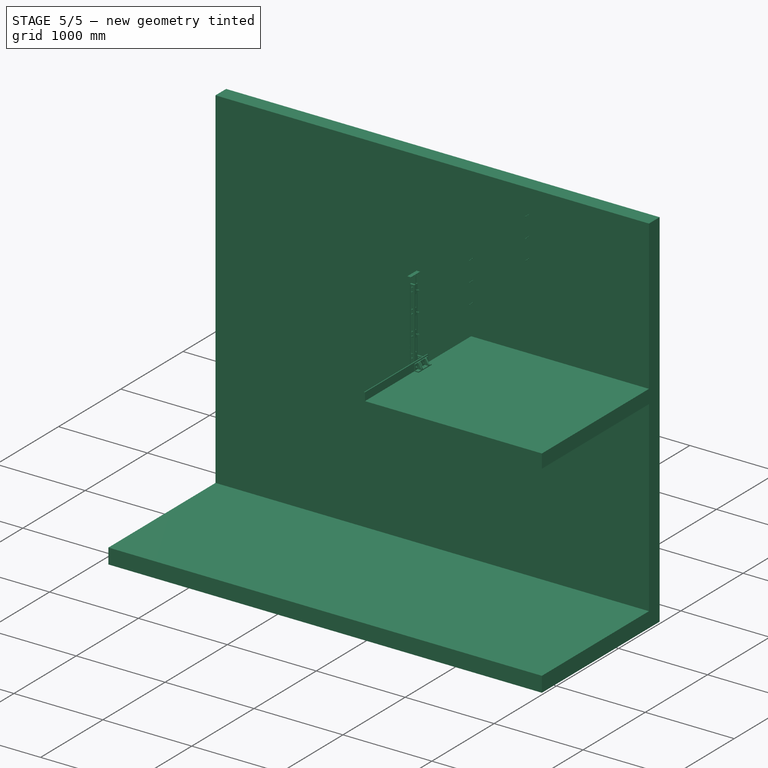
[diagram: stage 5 of 5 — iso view after this stage's code; geometry added in this stage tinted green]
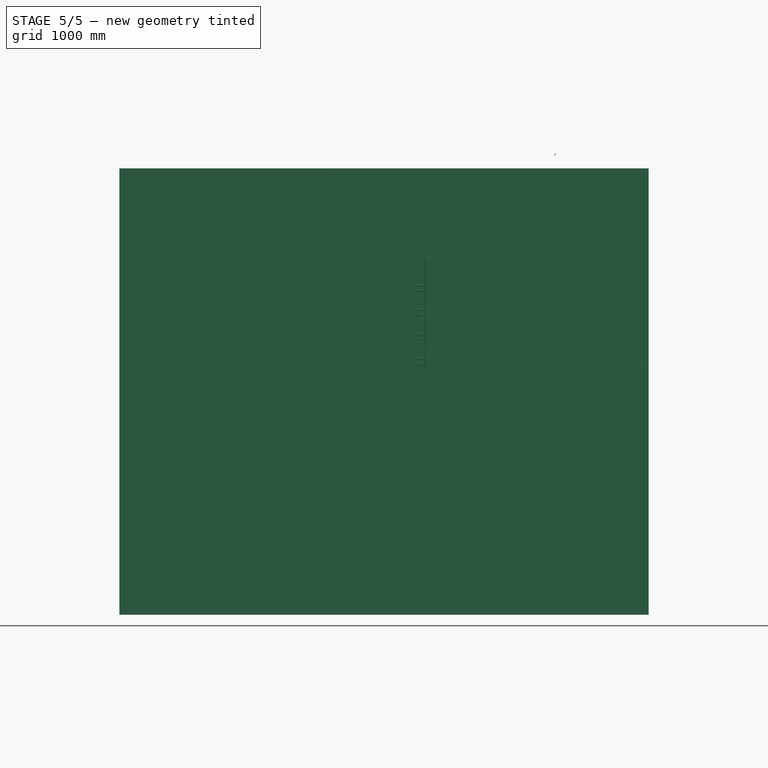
[diagram: stage 5 of 5 — front view after this stage's code; geometry added in this stage tinted green]
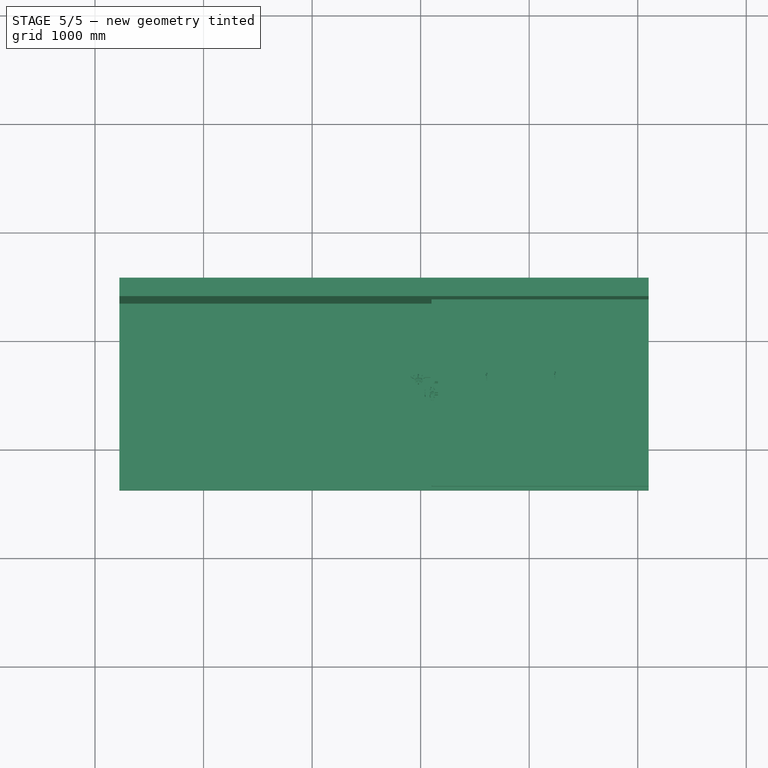
[diagram: stage 5 of 5 — top view after this stage's code; geometry added in this stage tinted green]
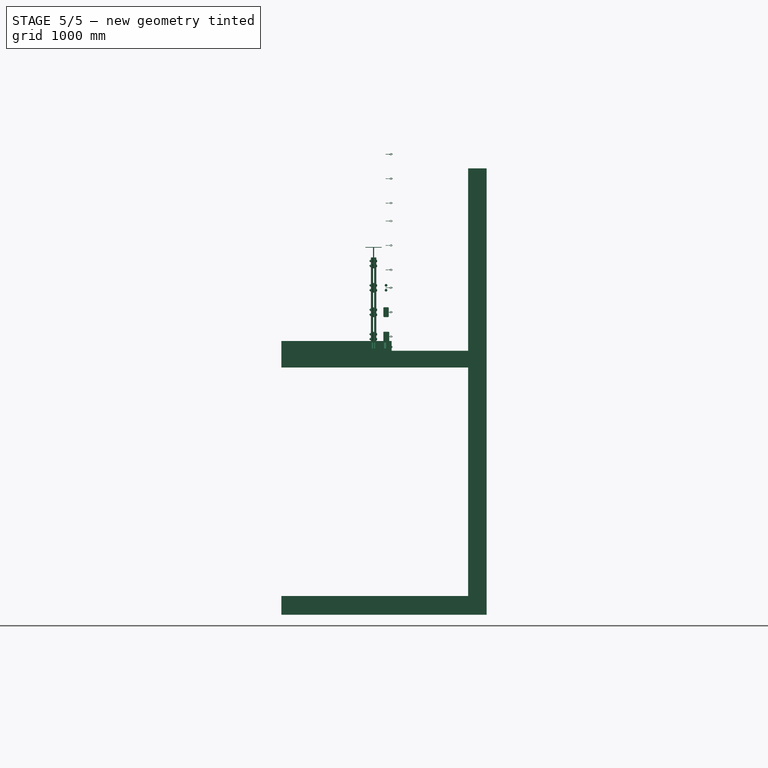
[diagram: stage 5 of 5 — right view after this stage's code; geometry added in this stage tinted green]
FEATURE [Part::Part2DObjectPython] Circle  # Draft 2D object (typed FeaturePython)
  FirstAngle = 0
  LastAngle = 0
  MakeFace = true
  Placement = pos=(51.8902,-385,225) rot=(1,0,0;1.5708rad)
  Radius = 5
  Support = -> [Pad002]
FEATURE [Part::Extrusion] Extrude002
  Base = -> Circle
  Dir = (0,1,0)
  DirMode = 0
  FaceMakerClass = Part::FaceMakerBullseye
  LengthFwd = 8
  LengthRev = 0
  Solid = false
  Symmetric = false
FEATURE [Part::FeaturePython] Array  # Draft array (typed FeaturePython)
  Angle = 360
  ArrayType = 0
  Axis = (0,0,1)
  Base = -> Extrude002
  Center = (0,0,0)
  Fuse = false
  IntervalAxis = (0,0,0)
  IntervalX = (75,0,0)
  IntervalY = (0,0,-125)
  IntervalZ = (0,0,0)
  NumberPolar = 1
  NumberX = 2
  NumberY = 2
  NumberZ = 1
FEATURE [Part::Compound] Compound
  Links = -> [Array,Extrude003,Extrude005]
FEATURE [Part::Cut] Cut
  Base = -> Extrude
  Tool = -> Compound
FEATURE [Part::Chamfer] Chamfer
  Base = -> Cut
  Edges = 8 edges r=5: [Edge1,Edge3,Edge6,Edge15,Edge27,Edge37,Edge43,Edge44]
  Placement = pos=(0,2,0) rot=(0,0,1;0rad)
FEATURE [Part::FeaturePython] railing_eyelet_002  # a2plus imported part (geometry in sourceFile) (typed FeaturePython)
  Placement = pos=(1890,0,1845) rot=(0,0,1;0rad)
  fixedPosition = true
  sourceFile = railing_eyelet.fcstd
  timeLastImport = 1.49443e+09
  updateColors = true
FEATURE [Part::Cut] Cut001
  Base = -> Chamfer
  Tool = -> Compound002
FEATURE [Part::FeaturePython] room_01  # a2plus imported part (geometry in sourceFile) (typed FeaturePython)
  fixedPosition = false
  sourceFile = room.fcstd
  timeLastImport = 1.49444e+09
  updateColors = true
FEATURE [TechDraw::DrawSVGTemplate] Template
  Height = 841
  Orientation = 0
  Width = 594
FEATURE [TechDraw::DrawProjGroupItem] ProjItem  label="Front"
  ArcCenterMarks = true
  CenterScale = 2
  Direction = (0,-1,0)
  HardHidden = true
  HiddenWidth = 0.15
  HorizCenterLine = false
  IsoCount = 0
  IsoHidden = false
  IsoVisible = false
  IsoWidth = 0.3
  KeepLabel = false
  LineWidth = 0.1
  Rotation = 0
  RotationVector = (1,0,0)
  Scale = 0.2
  ScaleType = 2
  SeamHidden = false
  SeamVisible = false
  ShowSectionLine = true
  SmoothHidden = false
  SmoothVisible = false
  Source = -> Cut001
  Type = 0
  VertCenterLine = false
  X = -51.5
  Y = 101.5
FEATURE [TechDraw::DrawProjGroupItem] ProjItem001  label="Left"
  ArcCenterMarks = true
  CenterScale = 2
  Direction = (-1,0,0)
  HardHidden = true
  HiddenWidth = 0.15
  HorizCenterLine = false
  IsoCount = 0
  IsoHidden = false
  IsoVisible = false
  IsoWidth = 0.3
  KeepLabel = false
  LineWidth = 0.1
  Rotation = 0
  RotationVector = (0,1,0)
  Scale = 0.2
  ScaleType = 2
  SeamHidden = false
  SeamVisible = false
  ShowSectionLine = true
  SmoothHidden = false
  SmoothVisible = false
  Source = -> Cut001
  Type = 1
  VertCenterLine = false
  X = 48
  Y = 0
FEATURE [TechDraw::DrawProjGroupItem] ProjItem002  label="Rear"
  ArcCenterMarks = true
  CenterScale = 2
  Direction = (0,1,0)
  HardHidden = true
  HiddenWidth = 0.15
  HorizCenterLine = false
  IsoCount = 0
  IsoHidden = false
  IsoVisible = false
  IsoWidth = 0.3
  KeepLabel = false
  LineWidth = 0.1
  Rotation = 0
  RotationVector = (-1,0,0)
  Scale = 0.2
  ScaleType = 2
  SeamHidden = false
  SeamVisible = false
  ShowSectionLine = true
  SmoothHidden = false
  SmoothVisible = false
  Source = -> Cut001
  Type = 3
  VertCenterLine = false
  X = 96
  Y = 0
FEATURE [TechDraw::DrawProjGroupItem] ProjItem003  label="Top"
  ArcCenterMarks = true
  CenterScale = 2
  Direction = (0,0,1)
  HardHidden = true
  HiddenWidth = 0.15
  HorizCenterLine = false
  IsoCount = 0
  IsoHidden = false
  IsoVisible = false
  IsoWidth = 0.3
  KeepLabel = false
  LineWidth = 0.1
  Rotation = 0
  RotationVector = (1,0,0)
  Scale = 0.2
  ScaleType = 2
  SeamHidden = false
  SeamVisible = false
  ShowSectionLine = true
  SmoothHidden = false
  SmoothVisible = false
  Source = -> Cut001
  Type = 4
  VertCenterLine = false
  X = 0
  Y = -63
FEATURE [TechDraw::DrawProjGroup] ProjGroup
  Anchor = -> ProjItem
  AutoDistribute = true
  KeepLabel = false
  ProjectionType = 0
  Rotation = 0
  Scale = 0.2
  ScaleType = 2
  Source = -> Cut001
  Views = -> [ProjItem,ProjItem001,ProjItem002,ProjItem003]
  X = 90.8829
  Y = 656.604
  spacingX = 25
  spacingY = 0
FEATURE [TechDraw::DrawViewPart] View
  ArcCenterMarks = true
  CenterScale = 2
  Direction = (-1,0.6,0.5)
  HardHidden = true
  HiddenWidth = 0.15
  HorizCenterLine = false
  IsoCount = 0
  IsoHidden = false
  IsoVisible = false
  IsoWidth = 0.3
  KeepLabel = false
  LineWidth = 0.1
  Rotation = 0
  Scale = 0.2
  ScaleType = 2
  SeamHidden = false
  SeamVisible = false
  ShowSectionLine = true
  SmoothHidden = false
  SmoothVisible = false
  Source = -> Cut001
  VertCenterLine = false
  X = 229.032
  Y = 658.145
FEATURE [Part::FeaturePython] loft_railing_element_01  # a2plus imported part (geometry in sourceFile) (typed FeaturePython)
  fixedPosition = false
  sourceFile = loft_railing_element.fcstd
  timeLastImport = 1.49483e+09
  updateColors = true
FEATURE [Part::Compound] Compound006
  Links = -> [Component004,Cut001,Cut002,Array008,Array007,Component005]
  Placement = pos=(1890,0,2070) rot=(0,0,1;0rad)
FEATURE [TechDraw::DrawViewMulti] MultiView
  ArcCenterMarks = true
  CenterScale = 2
  Direction = (-0.5,-0.5,1)
  HardHidden = true
  HiddenWidth = 0.15
  HorizCenterLine = false
  IsoCount = 0
  IsoHidden = false
  IsoVisible = false
  IsoWidth = 0.3
  KeepLabel = false
  LineWidth = 0.7
  Rotation = 0
  Scale = 0.5
  ScaleType = 2
  SeamHidden = false
  SeamVisible = false
  ShowSectionLine = true
  SmoothHidden = false
  SmoothVisible = false
  Source = -> Component005
  Sources = -> [Component005,Component004]
  VertCenterLine = false
  X = 357.729
  Y = 416.103
FEATURE [TechDraw::DrawPage] Page
  ProjectionType = 0
  Template = -> Template
  Views = -> [ProjGroup,View,MultiView,ProjGroup001,ProjGroup002]
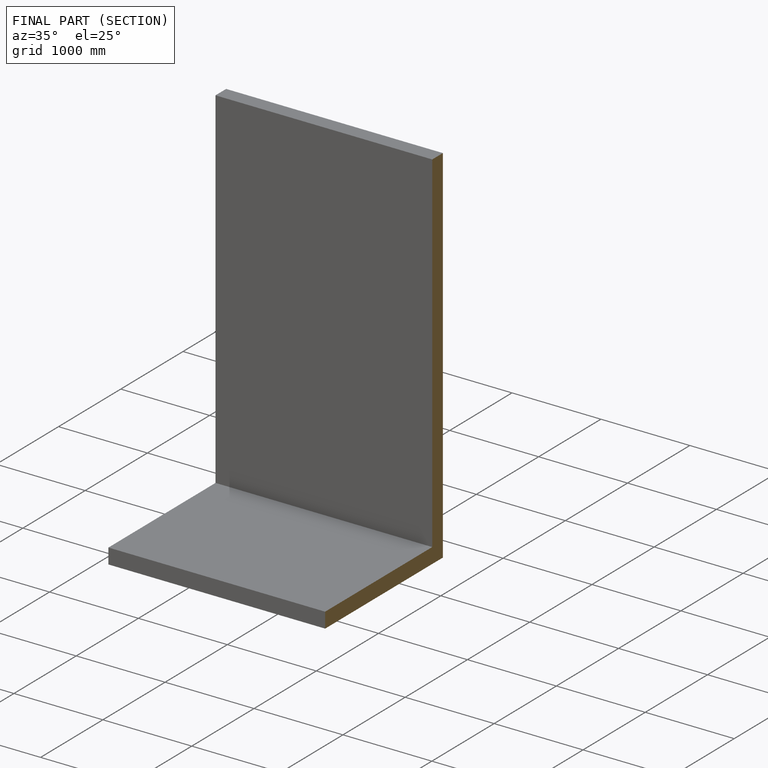
[diagram: finished part — half-section view (interior)]
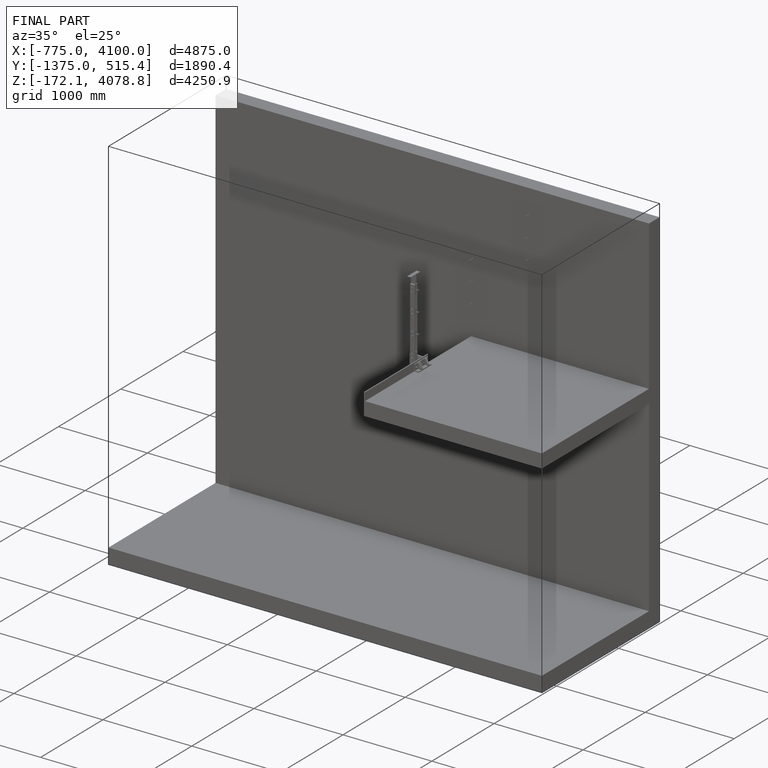
[diagram: finished part — iso view with bounding-box wireframe]
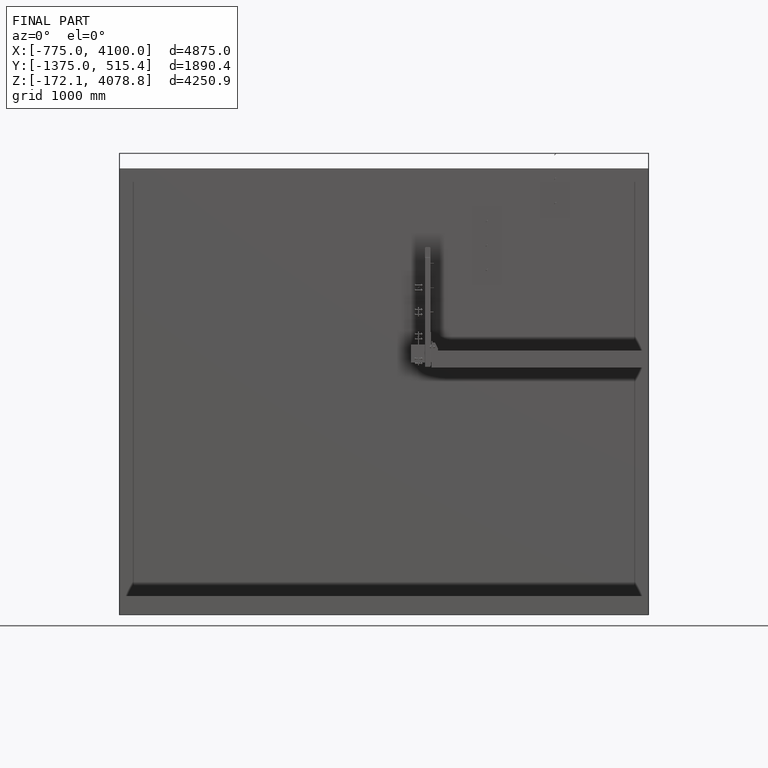
[diagram: finished part — front view with bounding-box wireframe]
